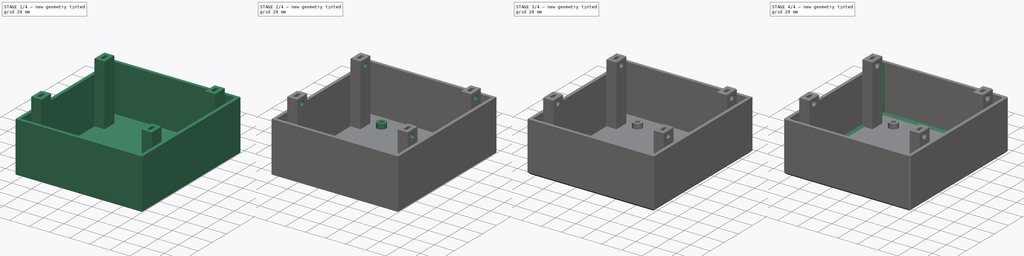
[diagram: build sequence overview — one tinted view per stage of 4, left to right]
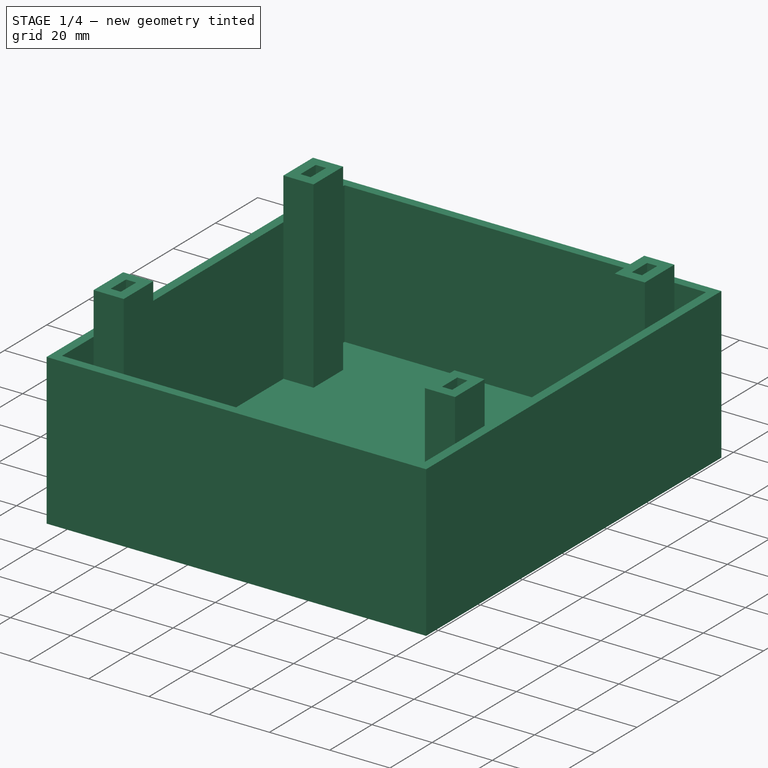
[diagram: stage 1 of 4 — iso view after this stage's code; geometry added in this stage tinted green]
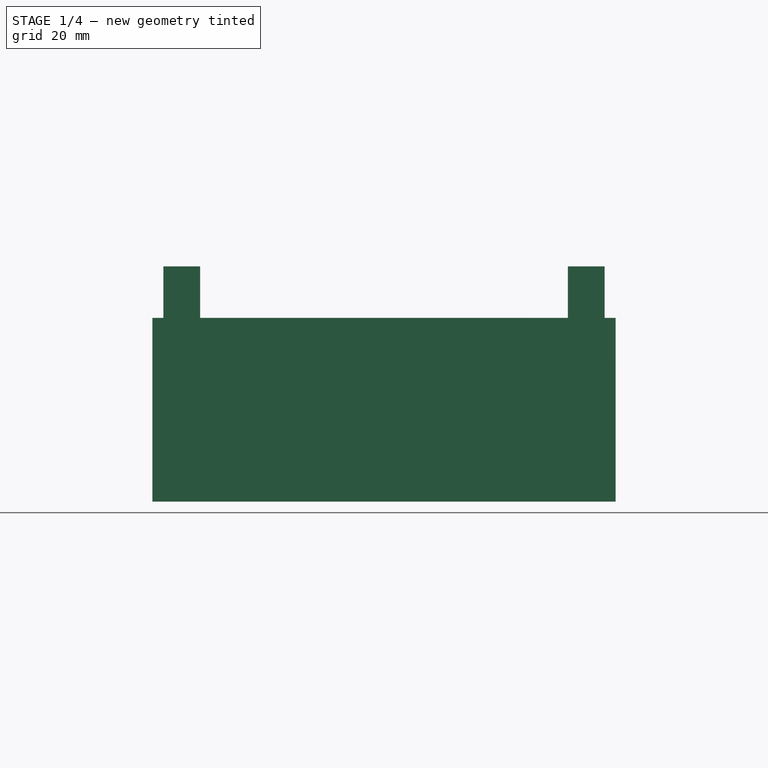
[diagram: stage 1 of 4 — front view after this stage's code; geometry added in this stage tinted green]
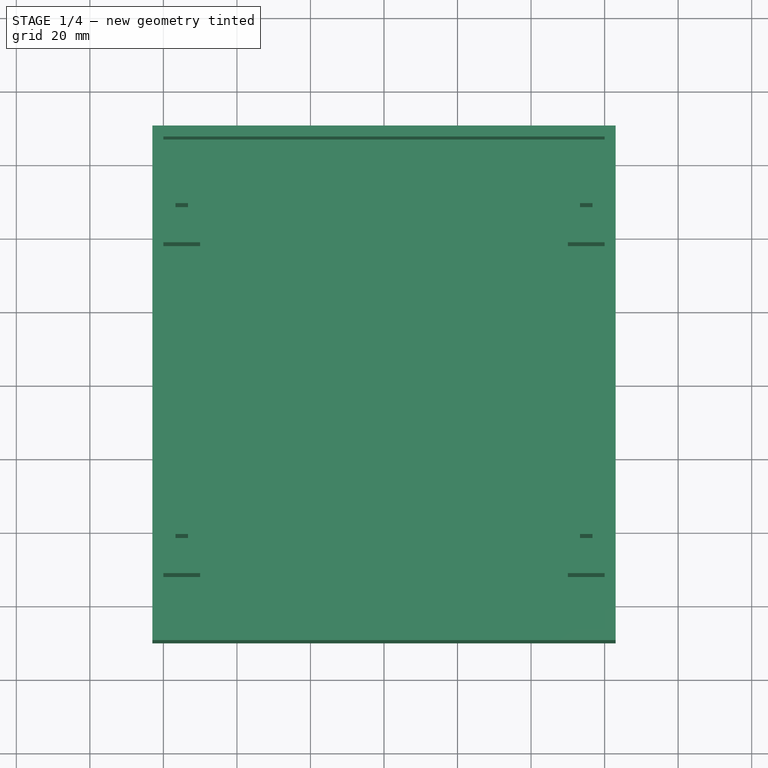
[diagram: stage 1 of 4 — top view after this stage's code; geometry added in this stage tinted green]
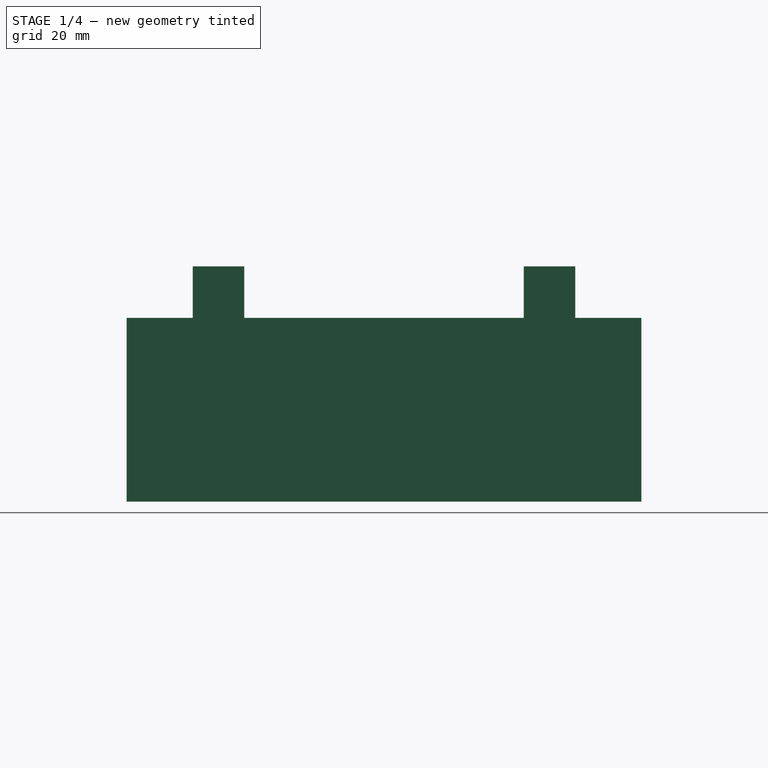
[diagram: stage 1 of 4 — right view after this stage's code; geometry added in this stage tinted green]
FCSTD DOCUMENT  (FreeCAD 0.15R4671 (Git))
Label: Finished Endcap blank
License: All rights reserved
LicenseURL: http://en.wikipedia.org/wiki/All_rights_reserved
objects: Sketcher::SketchObject×6, PartDesign::Chamfer×6, PartDesign::Pad×3, PartDesign::Pocket×3
note: 24 computed .brp shape members not serialized (recipe doc carries the construction recipe); baked Part::Feature solids carry a one-line shape summary decoded from their .brp

FEATURE [Sketcher::SketchObject] Sketch  label="End profile"
  sketch-geometry (8):
    g0: LineSegment StartX=-63 StartY=70 StartZ=0 EndX=63 EndY=70 EndZ=0
    g1: LineSegment StartX=63 StartY=70 StartZ=0 EndX=63 EndY=-70 EndZ=0
    g2: LineSegment StartX=63 StartY=-70 StartZ=0 EndX=-63 EndY=-70 EndZ=0
    g3: LineSegment StartX=-63 StartY=-70 StartZ=0 EndX=-63 EndY=70 EndZ=0
    g4: LineSegment [constr] StartX=-60 StartY=67 StartZ=0 EndX=60 EndY=67 EndZ=0
    g5: LineSegment [constr] StartX=60 StartY=67 StartZ=0 EndX=60 EndY=-67 EndZ=0
    g6: LineSegment [constr] StartX=60 StartY=-67 StartZ=0 EndX=-60 EndY=-67 EndZ=0
    g7: LineSegment [constr] StartX=-60 StartY=-67 StartZ=0 EndX=-60 EndY=67 EndZ=0
  constraints (24):
    c: Coincident(g0,g1)
    c: Coincident(g1,g2)
    c: Coincident(g2,g3)
    c: Coincident(g3,g0)
    c: Horizontal(g0)
    c: Horizontal(g2)
    c: Vertical(g1)
    c: Vertical(g3)
    c: Distance(g0) = 126
    c: Distance(g3) = 140
    c: Symmetric(g0,g0,g-2)
    c: Symmetric(g0,g2,g-1)
    c: Coincident(g4,g5)
    c: Coincident(g5,g6)
    c: Coincident(g6,g7)
    c: Coincident(g7,g4)
    c: Horizontal(g4)
    c: Horizontal(g6)
    c: Vertical(g5)
    c: Vertical(g7)
    c: DistanceX(g0,g4) = 3
    c: DistanceY(g0,g4) = -3
    c: Symmetric(g4,g4,g-2)
    c: Symmetric(g4,g6,g-1)
FEATURE [PartDesign::Pad] Pad
  Length = 50
  Length2 = 100
  Sketch = -> Sketch
  Type = 0
FEATURE [Sketcher::SketchObject] Sketch002  label="Cutout for goodies"
  Placement = pos=(0,0,50) rot=(0,0,1;0rad)
  Support = -> Pad [Face6]
  sketch-geometry (8):
    g0: LineSegment [constr] StartX=-63 StartY=70 StartZ=0 EndX=63 EndY=70 EndZ=0
    g1: LineSegment [constr] StartX=63 StartY=70 StartZ=0 EndX=63 EndY=-70 EndZ=0
    g2: LineSegment [constr] StartX=63 StartY=-70 StartZ=0 EndX=-63 EndY=-70 EndZ=0
    g3: LineSegment [constr] StartX=-63 StartY=-70 StartZ=0 EndX=-63 EndY=70 EndZ=0
    g4: LineSegment StartX=-60 StartY=67 StartZ=0 EndX=60 EndY=67 EndZ=0
    g5: LineSegment StartX=60 StartY=67 StartZ=0 EndX=60 EndY=-67 EndZ=0
    g6: LineSegment StartX=60 StartY=-67 StartZ=0 EndX=-60 EndY=-67 EndZ=0
    g7: LineSegment StartX=-60 StartY=-67 StartZ=0 EndX=-60 EndY=67 EndZ=0
  constraints (24):
    c: Coincident(g0,g1)
    c: Coincident(g1,g2)
    c: Coincident(g2,g3)
    c: Coincident(g3,g0)
    c: Horizontal(g0)
    c: Horizontal(g2)
    c: Vertical(g1)
    c: Vertical(g3)
    c: Distance(g0) = 126
    c: Distance(g3) = 140
    c: Symmetric(g0,g0,g-2)
    c: Symmetric(g0,g2,g-1)
    c: Coincident(g4,g5)
    c: Coincident(g5,g6)
    c: Coincident(g6,g7)
    c: Coincident(g7,g4)
    c: Horizontal(g4)
    c: Horizontal(g6)
    c: Vertical(g5)
    c: Vertical(g7)
    c: DistanceX(g0,g4) = 3
    c: DistanceY(g0,g4) = -3
    c: Symmetric(g4,g4,g-2)
    c: Symmetric(g4,g6,g-1)
FEATURE [PartDesign::Pocket] Pocket  label="Make space for goodies"
  Length = 47
  Sketch = -> Sketch002
  Type = 0
FEATURE [Sketcher::SketchObject] Sketch001  label="Fixing pillars with slot for nut trapping"
  Placement = pos=(0,0,3) rot=(0,0,1;0rad)
  Support = -> Pocket [Face11]
  sketch-geometry (36):
    g0: LineSegment StartX=-60 StartY=52 StartZ=0 EndX=-50 EndY=52 EndZ=0
    g1: LineSegment StartX=-50 StartY=52 StartZ=0 EndX=-50 EndY=38 EndZ=0
    g2: LineSegment StartX=-50 StartY=38 StartZ=0 EndX=-60 EndY=38 EndZ=0
    g3: LineSegment StartX=-60 StartY=38 StartZ=0 EndX=-60 EndY=52 EndZ=0
    g4: LineSegment StartX=50 StartY=52 StartZ=0 EndX=60 EndY=52 EndZ=0
    g5: LineSegment StartX=60 StartY=52 StartZ=0 EndX=60 EndY=38 EndZ=0
    g6: LineSegment StartX=60 StartY=38 StartZ=0 EndX=50 EndY=38 EndZ=0
    g7: LineSegment StartX=50 StartY=38 StartZ=0 EndX=50 EndY=52 EndZ=0
    g8: LineSegment StartX=-60 StartY=-38 StartZ=0 EndX=-50 EndY=-38 EndZ=0
    g9: LineSegment StartX=-50 StartY=-38 StartZ=0 EndX=-50 EndY=-52 EndZ=0
    g10: LineSegment StartX=-50 StartY=-52 StartZ=0 EndX=-60 EndY=-52 EndZ=0
    g11: LineSegment StartX=-60 StartY=-52 StartZ=0 EndX=-60 EndY=-38 EndZ=0
    g12: LineSegment StartX=50 StartY=-38 StartZ=0 EndX=60 EndY=-38 EndZ=0
    g13: LineSegment StartX=60 StartY=-38 StartZ=0 EndX=60 EndY=-52 EndZ=0
    g14: LineSegment StartX=60 StartY=-52 StartZ=0 EndX=50 EndY=-52 EndZ=0
    g15: LineSegment StartX=50 StartY=-52 StartZ=0 EndX=50 EndY=-38 EndZ=0
    g16: LineSegment StartX=-56.7 StartY=48.625 StartZ=0 EndX=-53.3 EndY=48.625 EndZ=0
    g17: LineSegment StartX=-53.3 StartY=48.625 StartZ=0 EndX=-53.3 EndY=41.375 EndZ=0
    g18: LineSegment StartX=-53.3 StartY=41.375 StartZ=0 EndX=-56.7 EndY=41.375 EndZ=0
    g19: LineSegment StartX=-56.7 StartY=41.375 StartZ=0 EndX=-56.7 EndY=48.625 EndZ=0
    g20: LineSegment [constr] StartX=-55 StartY=52 StartZ=0 EndX=-55 EndY=38 EndZ=0
    g21: LineSegment [constr] StartX=-60 StartY=45 StartZ=0 EndX=-50 EndY=45 EndZ=0
    g22: LineSegment StartX=53.3 StartY=48.625 StartZ=0 EndX=56.7 EndY=48.625 EndZ=0
    g23: LineSegment StartX=56.7 StartY=48.625 StartZ=0 EndX=56.7 EndY=41.375 EndZ=0
    g24: LineSegment StartX=56.7 StartY=41.375 StartZ=0 EndX=53.3 EndY=41.375 EndZ=0
    g25: LineSegment StartX=53.3 StartY=41.375 StartZ=0 EndX=53.3 EndY=48.625 EndZ=0
    g26: LineSegment StartX=-56.7 StartY=-41.375 StartZ=0 EndX=-53.3 EndY=-41.375 EndZ=0
    g27: LineSegment StartX=-53.3 StartY=-41.375 StartZ=0 EndX=-53.3 EndY=-48.625 EndZ=0
    g28: LineSegment StartX=-53.3 StartY=-48.625 StartZ=0 EndX=-56.7 EndY=-48.625 EndZ=0
    g29: LineSegment StartX=-56.7 StartY=-48.625 StartZ=0 EndX=-56.7 EndY=-41.375 EndZ=0
    g30: LineSegment StartX=53.3 StartY=-41.375 StartZ=0 EndX=56.7 EndY=-41.375 EndZ=0
    g31: LineSegment StartX=56.7 StartY=-41.375 StartZ=0 EndX=56.7 EndY=-48.625 EndZ=0
    g32: LineSegment StartX=56.7 StartY=-48.625 StartZ=0 EndX=53.3 EndY=-48.625 EndZ=0
    g33: LineSegment StartX=53.3 StartY=-48.625 StartZ=0 EndX=53.3 EndY=-41.375 EndZ=0
    g34: LineSegment [constr] StartX=-55 StartY=-38 StartZ=0 EndX=-55 EndY=-52 EndZ=0
    g35: LineSegment [constr] StartX=-60 StartY=-45 StartZ=0 EndX=-50 EndY=-45 EndZ=0
  constraints (100):
    c: Coincident(g0,g1)
    c: Coincident(g1,g2)
    c: Coincident(g2,g3)
    c: Coincident(g3,g0)
    c: Horizontal(g0)
    c: Horizontal(g2)
    c: Vertical(g1)
    c: Vertical(g3)
    c: Coincident(g4,g5)
    c: Coincident(g5,g6)
    c: Coincident(g6,g7)
    c: Coincident(g7,g4)
    c: Horizontal(g4)
    c: Horizontal(g6)
    c: Vertical(g5)
    c: Vertical(g7)
    c: Coincident(g8,g9)
    c: Coincident(g9,g10)
    c: Coincident(g10,g11)
    c: Coincident(g11,g8)
    c: Horizontal(g8)
    c: Horizontal(g10)
    c: Vertical(g9)
    c: Vertical(g11)
    c: Coincident(g12,g13)
    c: Coincident(g13,g14)
    c: Coincident(g14,g15)
    c: Coincident(g15,g12)
    c: Horizontal(g12)
    c: Horizontal(g14)
    c: Vertical(g13)
    c: Vertical(g15)
    c: Distance(g0) = 10
    c: Distance(g1) = 14
    c: Equal(g0,g4)
    c: Equal(g4,g12)
    c: Equal(g12,g8)
    c: Equal(g1,g5)
    c: Equal(g5,g13)
    c: Equal(g13,g9)
    c: Coincident(g16,g17)
    c: Coincident(g17,g18)
    c: Coincident(g18,g19)
    c: Coincident(g19,g16)
    c: Horizontal(g16)
    c: Horizontal(g18)
    c: Vertical(g17)
    c: Vertical(g19)
    c: Distance(g16) = 3.4
    c: Distance(g17) = 7.25
    c: Perpendicular(g20,g0) = 1.5708
    c: PointOnObject(g20,g2)
    c: Perpendicular(g21,g3) = 1.5708
    c: PointOnObject(g21,g1)
    c: Symmetric(g0,g0,g20)
    c: Symmetric(g2,g0,g21)
    c: Symmetric(g16,g16,g20)
    c: Symmetric(g16,g18,g21)
    c: Coincident(g22,g23)
    c: Coincident(g23,g24)
    c: Coincident(g24,g25)
    c: Coincident(g25,g22)
    c: Horizontal(g22)
    c: Horizontal(g24)
    c: Vertical(g23)
    c: Vertical(g25)
    c: Equal(g16,g22)
    c: Equal(g23,g17)
    c: Coincident(g26,g27)
    c: Coincident(g27,g28)
    c: Coincident(g28,g29)
    c: Coincident(g29,g26)
    c: Horizontal(g26)
    c: Horizontal(g28)
    c: Vertical(g27)
    c: Vertical(g29)
    c: Coincident(g30,g31)
    c: Coincident(g31,g32)
    c: Coincident(g32,g33)
    c: Coincident(g33,g30)
    c: Horizontal(g30)
    c: Horizontal(g32)
    c: Vertical(g31)
    c: Vertical(g33)
    c: Equal(g30,g26)
    c: Equal(g26,g16)
    c: Equal(g19,g29)
    c: Equal(g29,g33)
    c: Symmetric(g0,g4,g-2)
    c: Symmetric(g8,g12,g-2)
    c: Symmetric(g16,g22,g-2)
    c: Symmetric(g26,g30,g-2)
    c: Perpendicular(g34,g8) = 1.5708
    c: PointOnObject(g34,g10)
    c: Perpendicular(g35,g11) = 1.5708
    c: PointOnObject(g35,g9)
    c: Symmetric(g8,g8,g34)
    c: Symmetric(g10,g8,g35)
    c: Symmetric(g26,g26,g34)
    c: Symmetric(g28,g26,g35)
FEATURE [PartDesign::Pad] Pad001  label="Add pillars"
  Length = 61
  Length2 = 100
  Sketch = -> Sketch001
  Type = 0
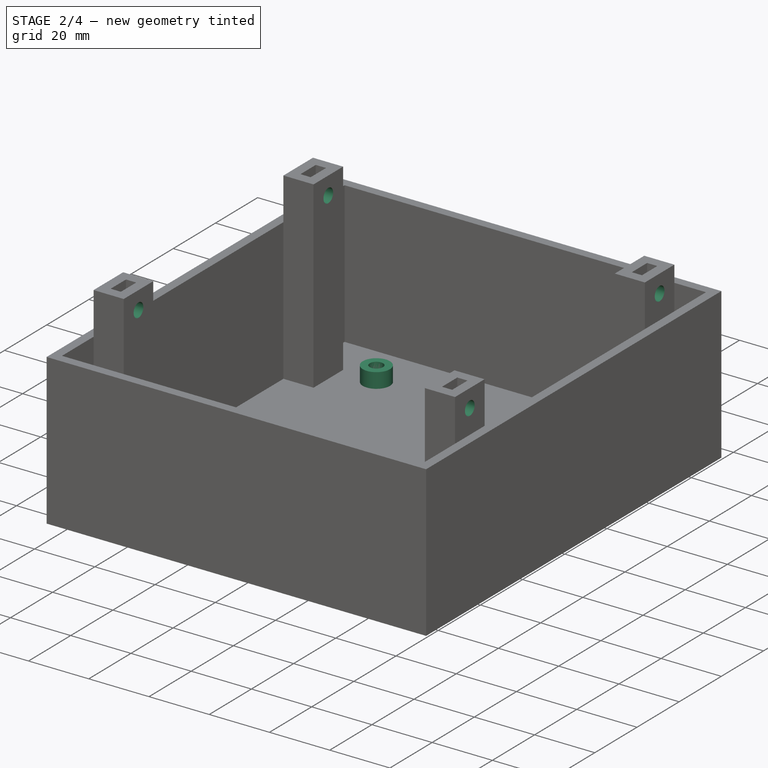
[diagram: stage 2 of 4 — iso view after this stage's code; geometry added in this stage tinted green]
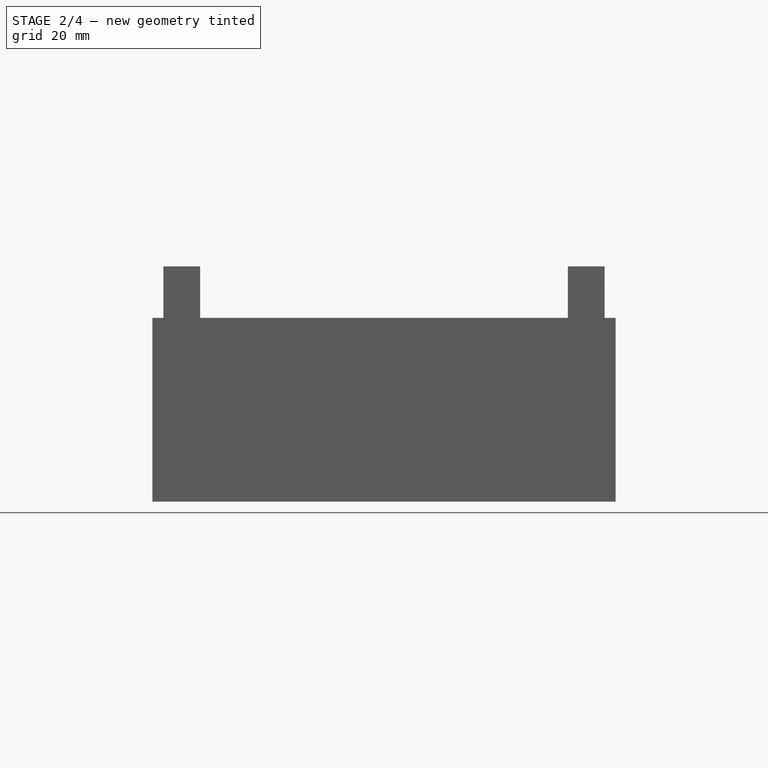
[diagram: stage 2 of 4 — front view after this stage's code; geometry added in this stage tinted green]
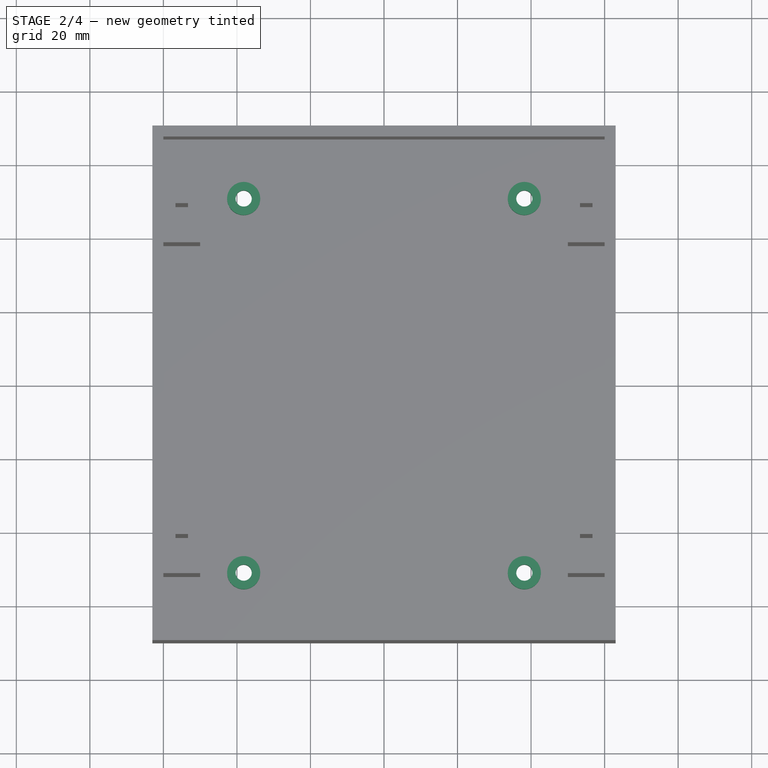
[diagram: stage 2 of 4 — top view after this stage's code; geometry added in this stage tinted green]
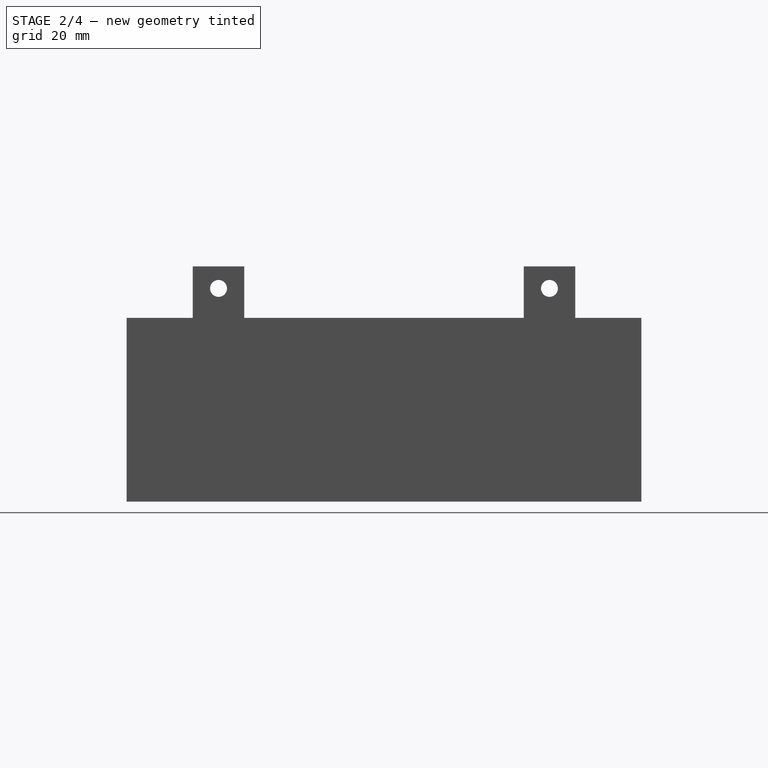
[diagram: stage 2 of 4 — right view after this stage's code; geometry added in this stage tinted green]
FEATURE [Sketcher::SketchObject] Sketch003  label="Screwholes for mounting cap"
  ExternalGeometry = -> [Pad001]
  Placement = pos=(60,0,0) rot=(0.57735,0.57735,0.57735;2.0944rad)
  Support = -> Pad001 [Face15]
  sketch-geometry (2):
    g0: Circle CenterX=-45 CenterY=58 CenterZ=0 NormalX=0 NormalY=0 NormalZ=1 Radius=2.3
    g1: Circle CenterX=45 CenterY=58 CenterZ=0 NormalX=0 NormalY=0 NormalZ=1 Radius=2.3
  constraints (5):
    c: Symmetric(g0,g1,g-2)
    c: Equal(g0,g1)
    c: Radius(g0) = 2.3
    c: DistanceY(g0,g-3) = -8
    c: DistanceX(g0,g-3) = -25
FEATURE [PartDesign::Pocket] Pocket001  label="Add screwholes for mounting cap"
  Length = 5
  Sketch = -> Sketch003
  Type = 1
FEATURE [Sketcher::SketchObject] Sketch004  label="Mounting pillars for undefined feature"
  Placement = pos=(0,0,3) rot=(0,0,1;0rad)
  Support = -> Pocket001 [Face19]
  sketch-geometry (4):
    g0: Circle CenterX=-38.1655 CenterY=50.887 CenterZ=0 NormalX=0 NormalY=0 NormalZ=1 Radius=4.5
    g1: Circle CenterX=38.1655 CenterY=50.887 CenterZ=0 NormalX=0 NormalY=0 NormalZ=1 Radius=4.5
    g2: Circle CenterX=-38.1655 CenterY=-50.887 CenterZ=0 NormalX=0 NormalY=0 NormalZ=1 Radius=4.5
    g3: Circle CenterX=38.1655 CenterY=-50.887 CenterZ=0 NormalX=0 NormalY=0 NormalZ=1 Radius=4.5
  constraints (9):
    c: Symmetric(g0,g1,g-2)
    c: Symmetric(g0,g2,g-1)
    c: Symmetric(g2,g3,g-2)
    c: DistanceX(g0,g1) = 76.331
    c: DistanceY(g0,g2) = -101.774
    c: Equal(g0,g1)
    c: Equal(g1,g3)
    c: Equal(g3,g2)
    c: Radius(g0) = 4.5
FEATURE [PartDesign::Pad] Pad002  label="Add pillars for undefined feature"
  Length = 5
  Length2 = 100
  Sketch = -> Sketch004
  Type = 0
FEATURE [Sketcher::SketchObject] Sketch005  label="Screwholes for mounting undefined feature"
  Placement = pos=(0,0,8) rot=(0,0,1;0rad)
  Support = -> Pad002 [Face67]
  sketch-geometry (4):
    g0: Circle CenterX=-38.1655 CenterY=50.887 CenterZ=0 NormalX=0 NormalY=0 NormalZ=1 Radius=2.2
    g1: Circle CenterX=38.1655 CenterY=50.887 CenterZ=0 NormalX=0 NormalY=0 NormalZ=1 Radius=2.2
    g2: Circle CenterX=-38.1655 CenterY=-50.887 CenterZ=0 NormalX=0 NormalY=0 NormalZ=1 Radius=2.2
    g3: Circle CenterX=38.1655 CenterY=-50.887 CenterZ=0 NormalX=0 NormalY=0 NormalZ=1 Radius=2.2
  constraints (9):
    c: Symmetric(g0,g1,g-2)
    c: Symmetric(g0,g2,g-1)
    c: Symmetric(g2,g3,g-2)
    c: DistanceX(g0,g1) = 76.331
    c: DistanceY(g0,g2) = -101.774
    c: Equal(g0,g1)
    c: Equal(g1,g3)
    c: Equal(g3,g2)
    c: Radius(g0) = 2.2
FEATURE [PartDesign::Pocket] Pocket002
  Length = 5
  Sketch = -> Sketch005
  Type = 1
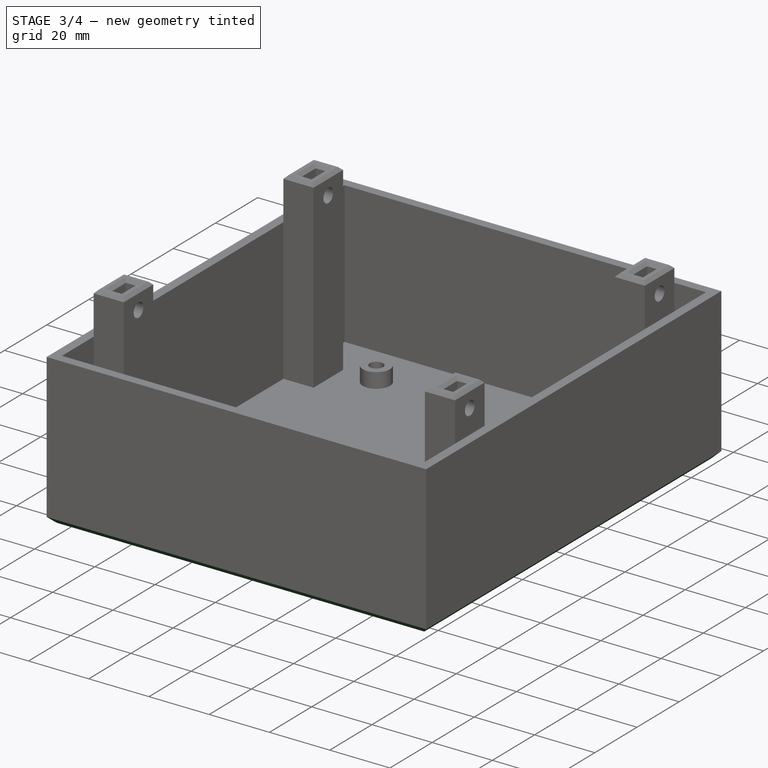
[diagram: stage 3 of 4 — iso view after this stage's code; geometry added in this stage tinted green]
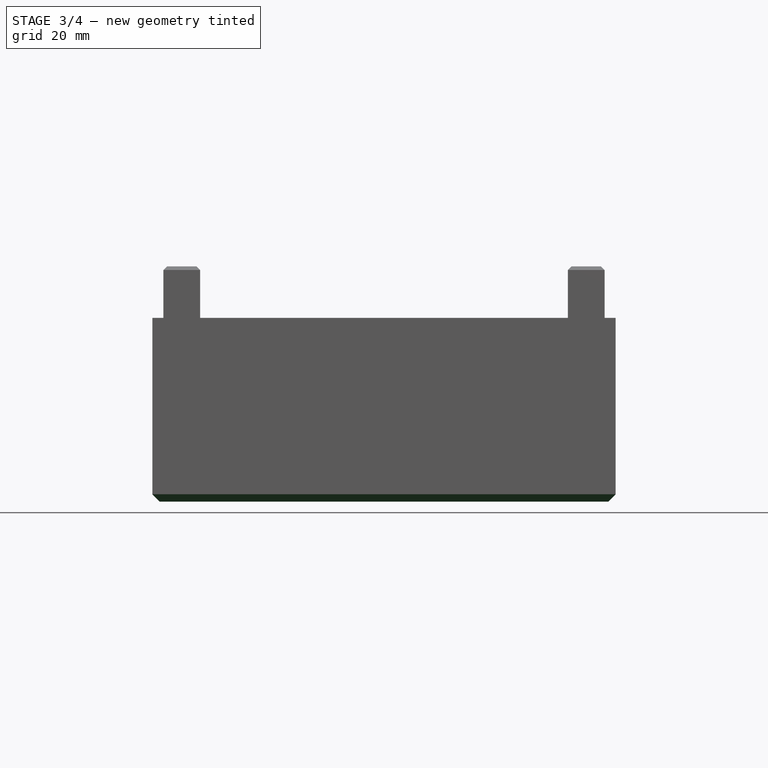
[diagram: stage 3 of 4 — front view after this stage's code; geometry added in this stage tinted green]
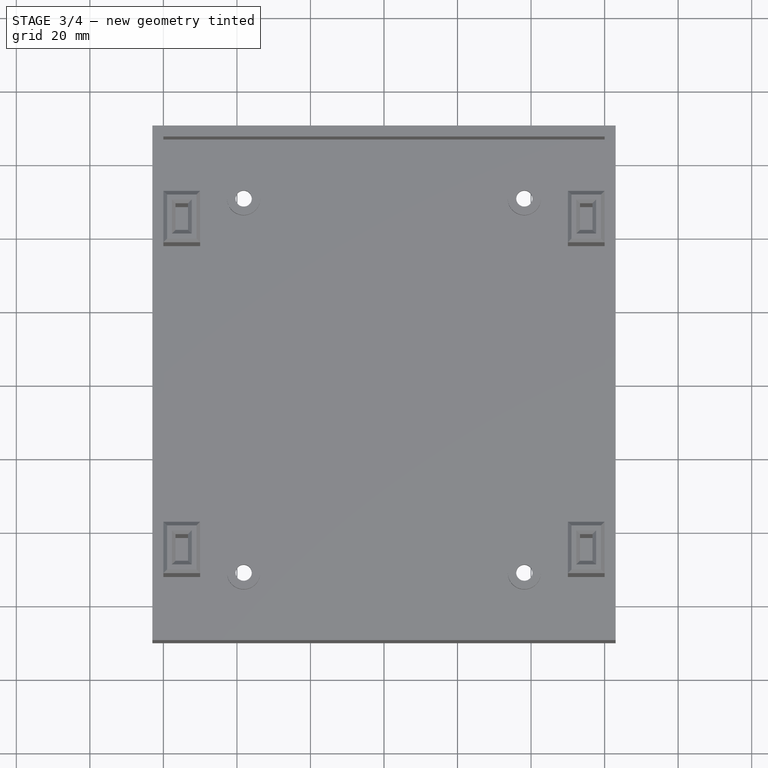
[diagram: stage 3 of 4 — top view after this stage's code; geometry added in this stage tinted green]
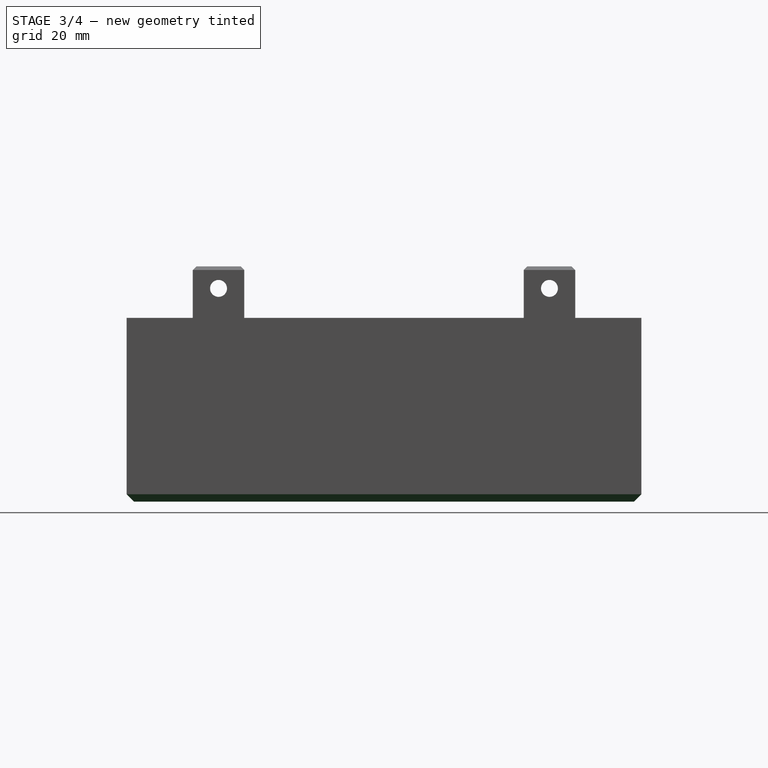
[diagram: stage 3 of 4 — right view after this stage's code; geometry added in this stage tinted green]
FEATURE [PartDesign::Chamfer] Chamfer
  Base = -> Pocket002 [Edge9,Edge3,Edge11,Edge6]
  Size = 2
FEATURE [PartDesign::Chamfer] Chamfer001
  Base = -> Chamfer [Edge33,Edge32,Edge35,Edge34]
  Size = 0.35
FEATURE [PartDesign::Chamfer] Chamfer002
  Base = -> Chamfer001 [Edge114,Edge119,Edge118,Edge68,Edge120,Edge121,Edge122,Edge123,Edge136,Edge141,Edge140,Edge82,Edge142,Edge143,Edge144,Edge145,Edge116,Edge72,Edge127,Edge128,Edge129,Edge130,Edge131,Edge132,Edge138,Edge86,Edge149,Edge150,Edge151,Edge152,Edge153,Edge154]
  Size = 1
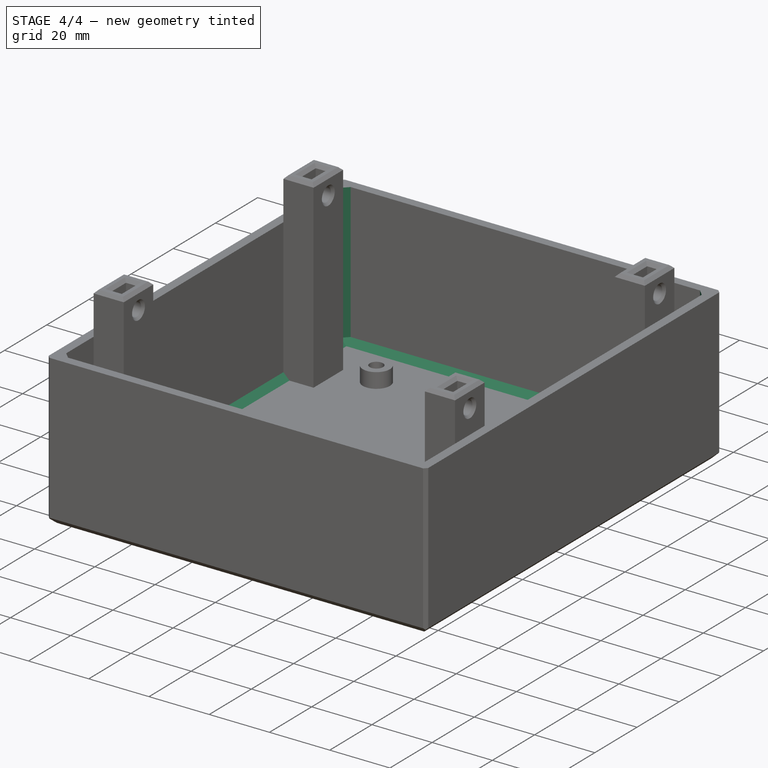
[diagram: stage 4 of 4 — iso view after this stage's code; geometry added in this stage tinted green]
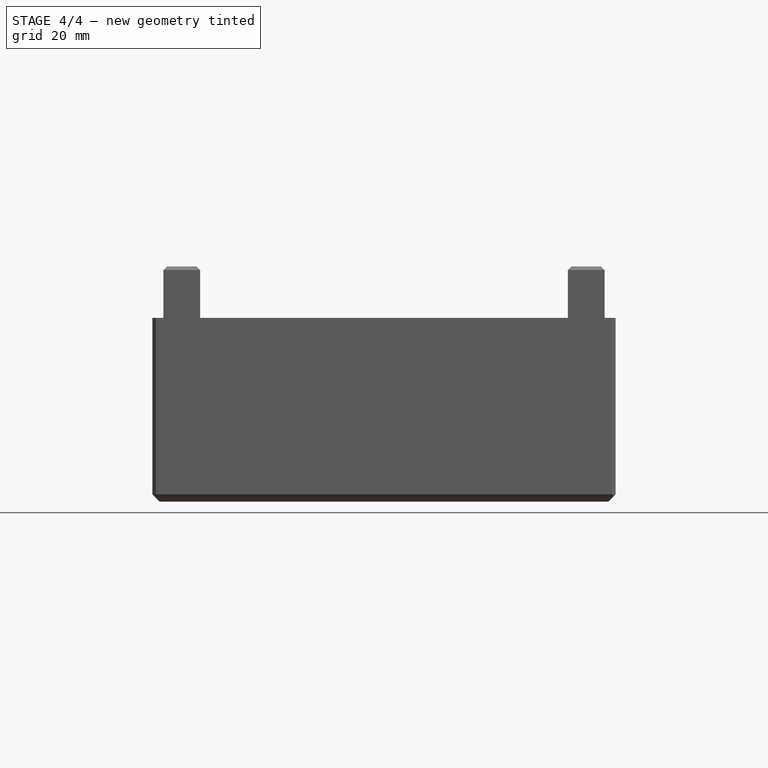
[diagram: stage 4 of 4 — front view after this stage's code; geometry added in this stage tinted green]
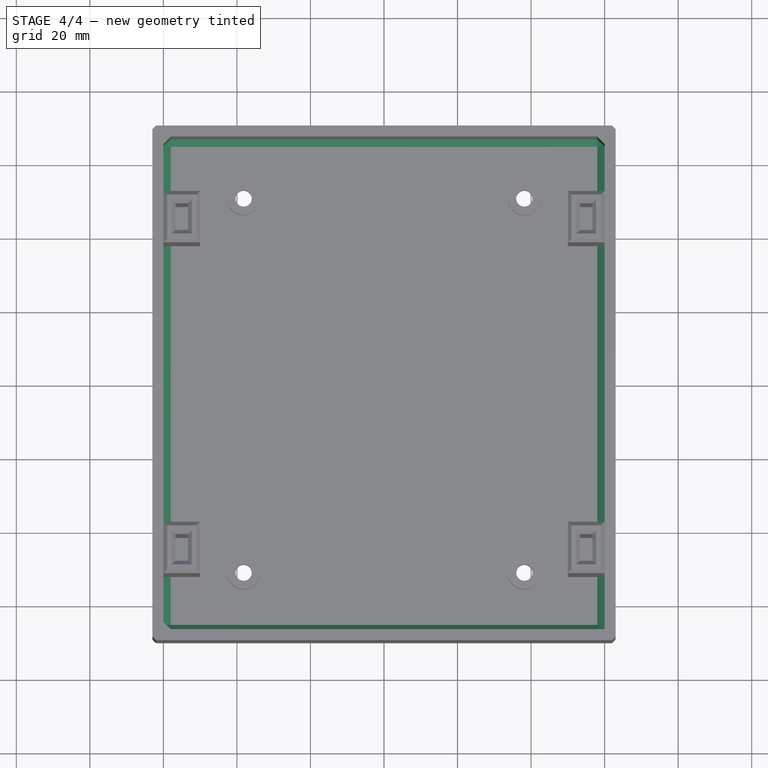
[diagram: stage 4 of 4 — top view after this stage's code; geometry added in this stage tinted green]
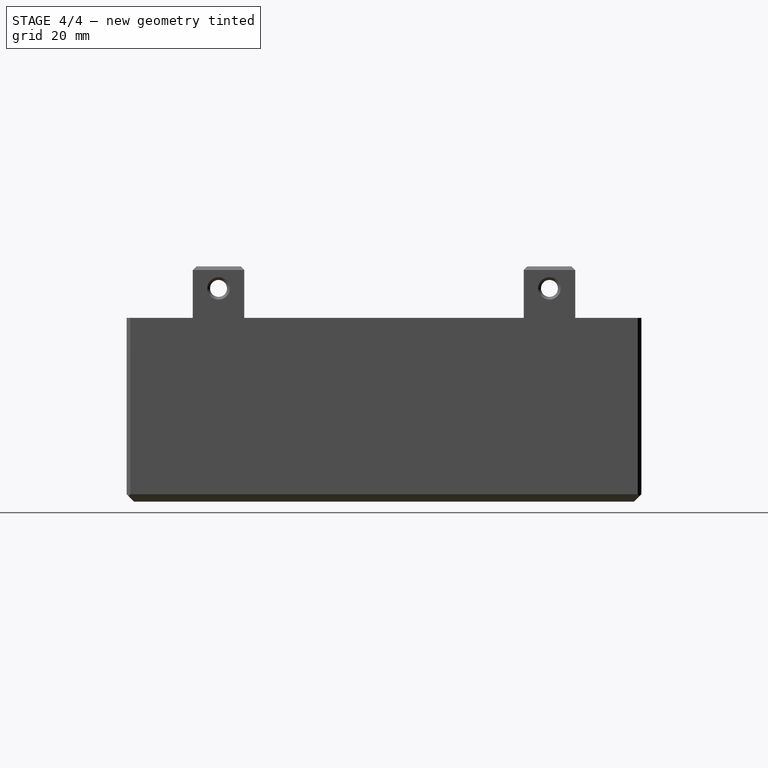
[diagram: stage 4 of 4 — right view after this stage's code; geometry added in this stage tinted green]
FEATURE [PartDesign::Chamfer] Chamfer003
  Base = -> Chamfer002 [Edge5,Edge88,Edge118,Edge107,Edge36,Edge82,Edge92,Edge115]
  Size = 0.75
FEATURE [PartDesign::Chamfer] Chamfer004
  Base = -> Chamfer003 [Edge70,Edge72,Edge76,Edge73]
  Size = 1
FEATURE [PartDesign::Chamfer] Chamfer005
  Base = -> Chamfer004 [Edge72,Edge76,Edge57,Edge42,Edge60,Edge41,Edge43,Edge47,Edge44,Edge74,Edge71]
  Size = 2
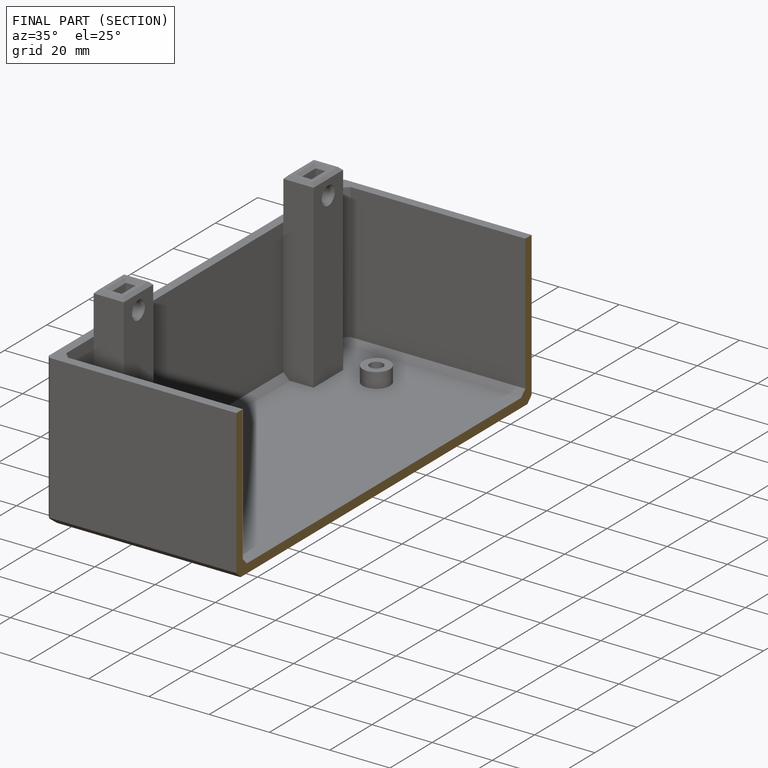
[diagram: finished part — half-section view (interior)]
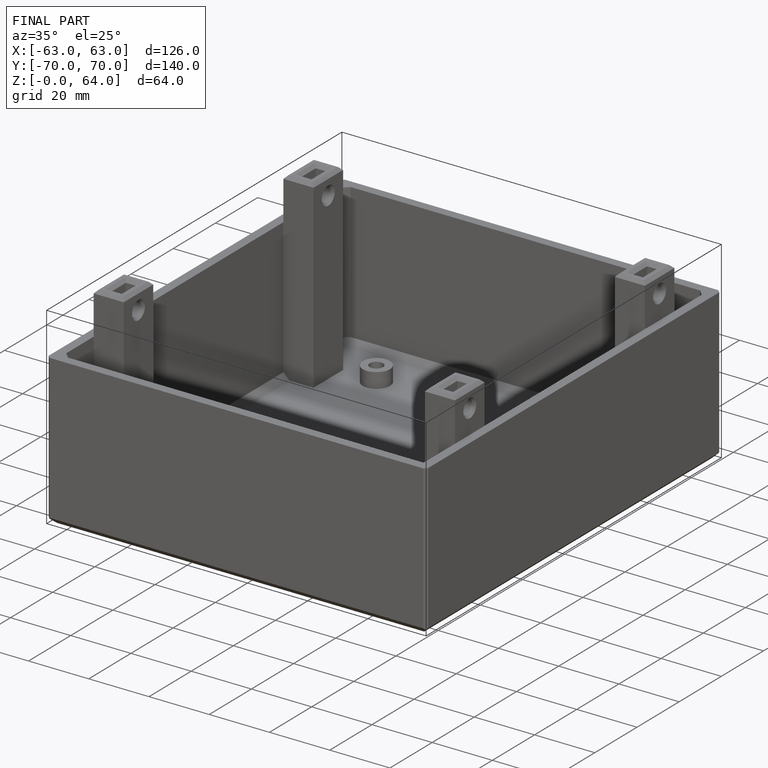
[diagram: finished part — iso view with bounding-box wireframe]
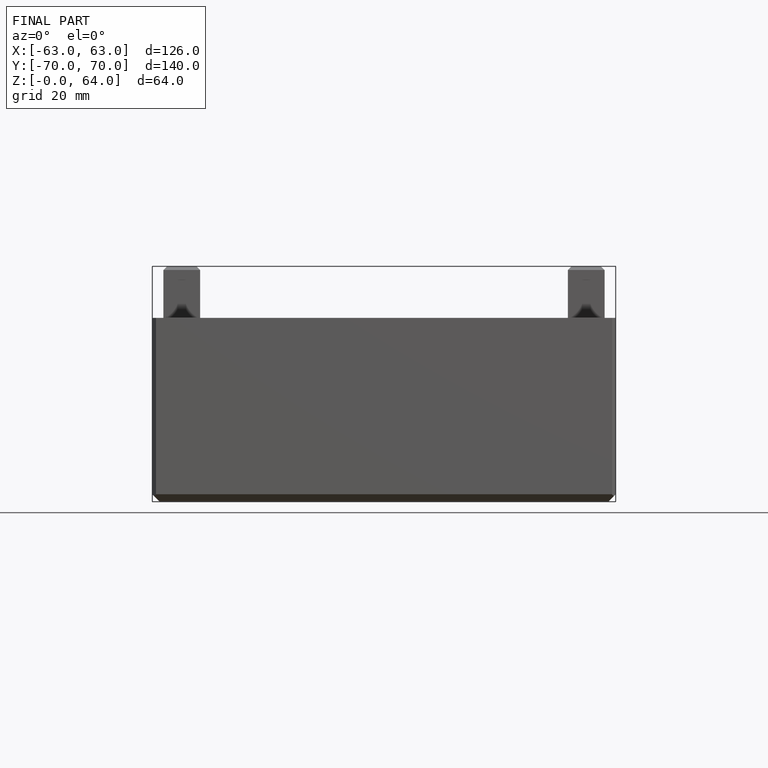
[diagram: finished part — front view with bounding-box wireframe]
